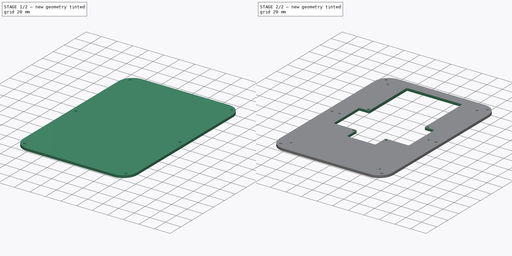
[diagram: build sequence overview — one tinted view per stage of 2, left to right]
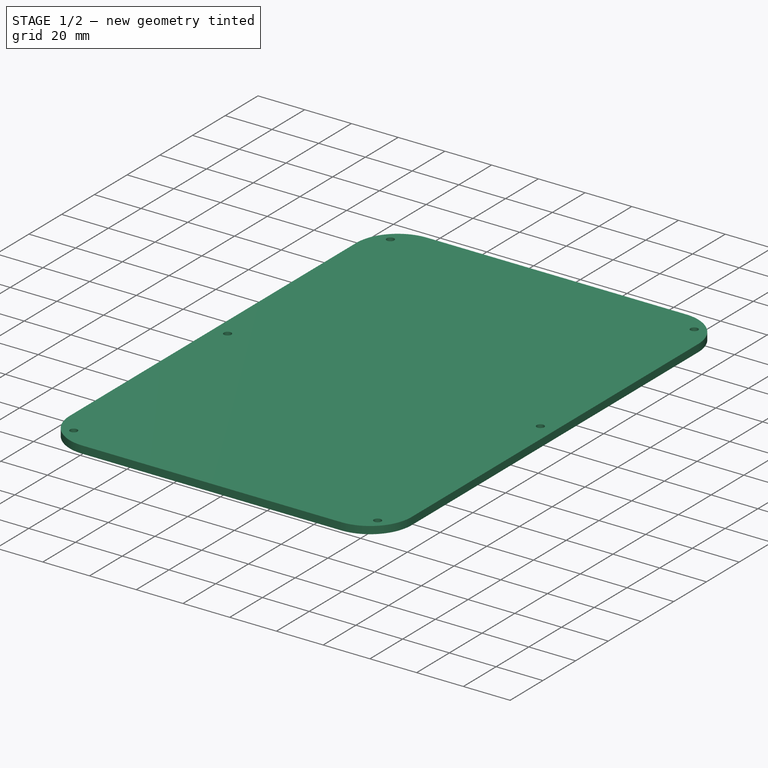
[diagram: stage 1 of 2 — iso view after this stage's code; geometry added in this stage tinted green]
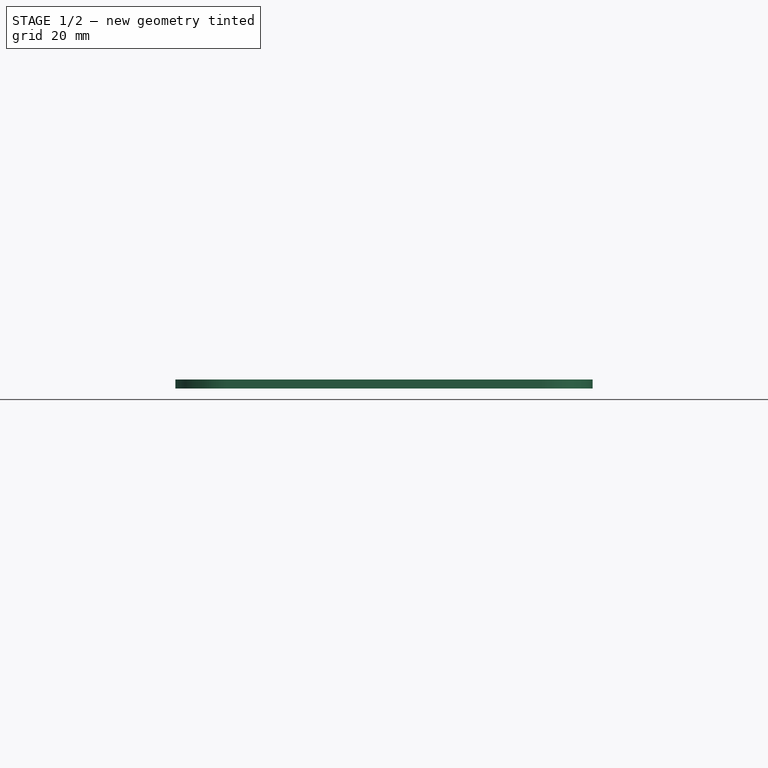
[diagram: stage 1 of 2 — front view after this stage's code; geometry added in this stage tinted green]
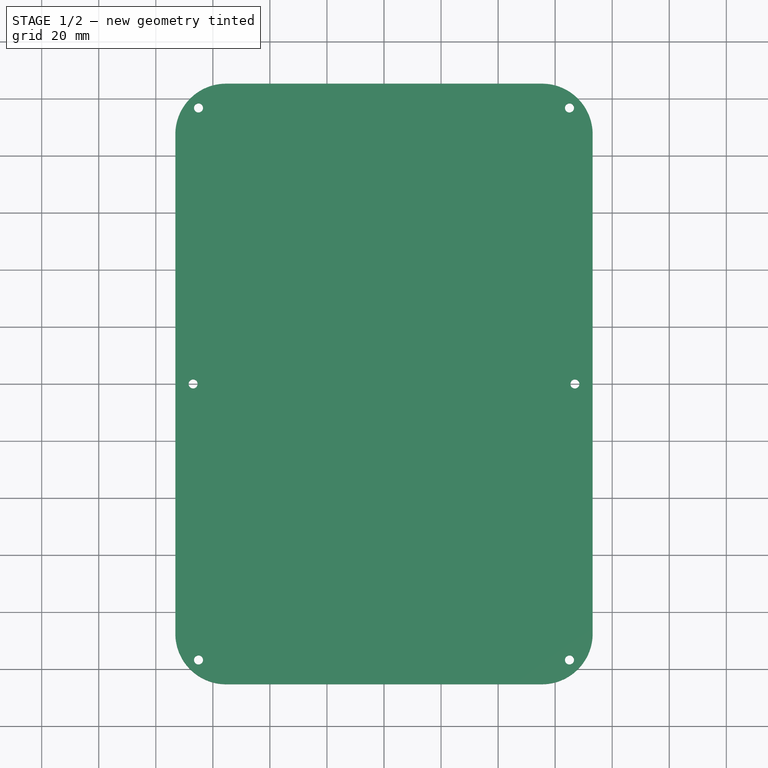
[diagram: stage 1 of 2 — top view after this stage's code; geometry added in this stage tinted green]
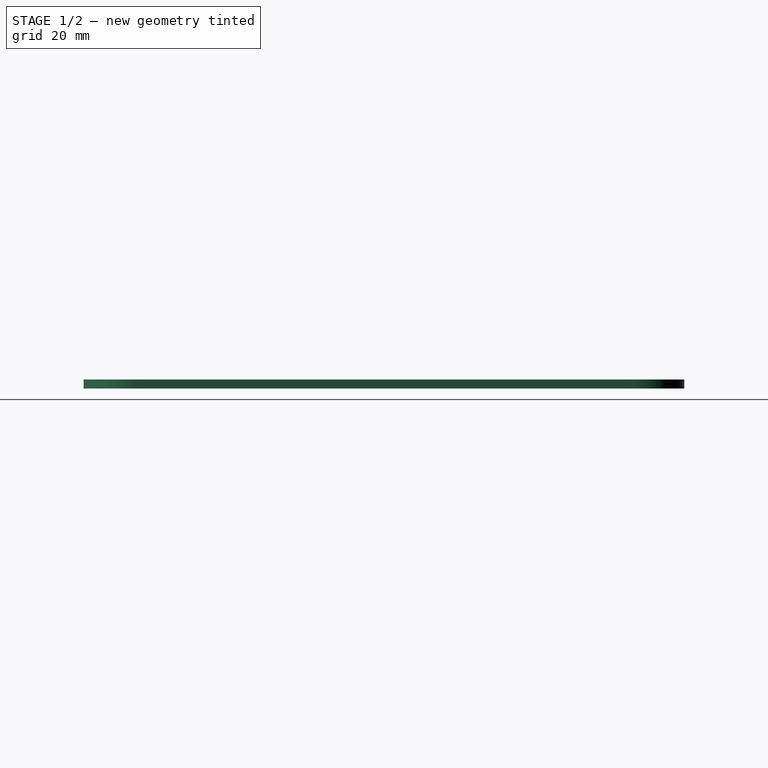
[diagram: stage 1 of 2 — right view after this stage's code; geometry added in this stage tinted green]
FCSTD DOCUMENT  (FreeCAD 0.20R29177 (Git))
Label: top_plate
License: All rights reserved
LicenseURL: http://en.wikipedia.org/wiki/All_rights_reserved
objects: Sketcher::SketchObject×4, PartDesign::Pocket×3, Spreadsheet::Sheet×1, PartDesign::Pad×1, PartDesign::Plane×1, PartDesign::Body×1, Part::Part2DObjectPython×1
note: 15 computed .brp shape members not serialized (recipe doc carries the construction recipe); baked Part::Feature solids carry a one-line shape summary decoded from their .brp

FEATURE [Sketcher::SketchObject] Sketch  label="BoundarySketch"
  FullyConstrained = true
  MapMode = 5
  Support = -> [XY_Plane]
  expr: Constraints[20] = Spreadsheet.Length
  expr: Constraints[21] = Spreadsheet.Width
  expr: Constraints[22] = Spreadsheet.CornerRadius
  sketch-geometry (10):
    g0: ArcOfCircle CenterX=-55.372 CenterY=87.503 CenterZ=0 NormalX=0 NormalY=0 NormalZ=1 AngleXU=0 Radius=17.78 StartAngle=1.5708 EndAngle=3.14159
    g1: LineSegment StartX=-55.372 StartY=105.283 StartZ=0 EndX=55.372 EndY=105.283 EndZ=0
    g2: ArcOfCircle CenterX=55.372 CenterY=87.503 CenterZ=0 NormalX=0 NormalY=0 NormalZ=1 AngleXU=0 Radius=17.78 StartAngle=0 EndAngle=1.5708
    g3: LineSegment StartX=73.152 StartY=87.503 StartZ=0 EndX=73.152 EndY=-87.503 EndZ=0
    g4: ArcOfCircle CenterX=55.372 CenterY=-87.503 CenterZ=0 NormalX=0 NormalY=0 NormalZ=1 AngleXU=0 Radius=17.78 StartAngle=4.71239 EndAngle=6.28319
    g5: LineSegment StartX=55.372 StartY=-105.283 StartZ=0 EndX=-55.372 EndY=-105.283 EndZ=0
    g6: ArcOfCircle CenterX=-55.372 CenterY=-87.503 CenterZ=0 NormalX=0 NormalY=0 NormalZ=1 AngleXU=0 Radius=17.78 StartAngle=3.14159 EndAngle=4.71239
    g7: LineSegment StartX=-73.152 StartY=-87.503 StartZ=0 EndX=-73.152 EndY=87.503 EndZ=0
    g8: GeomPoint X=-73.152 Y=105.283 Z=0
    g9: GeomPoint X=73.152 Y=-105.283 Z=0
  constraints (23):
    c: Tangent(g0,g1) = 1.5708
    c: Tangent(g1,g2) = 1.5708
    c: Tangent(g2,g3) = 1.5708
    c: Tangent(g3,g4) = 1.5708
    c: Tangent(g4,g5) = 1.5708
    c: Tangent(g5,g6) = 1.5708
    c: Tangent(g6,g7) = 1.5708
    c: Tangent(g7,g0) = 1.5708
    c: Horizontal(g1)
    c: Horizontal(g5)
    c: Vertical(g3)
    c: Vertical(g7)
    c: Equal(g0,g2)
    c: Equal(g2,g4)
    c: Equal(g4,g6)
    c: PointOnObject(g8,g1)
    c: PointOnObject(g8,g7)
    c: PointOnObject(g9,g3)
    c: PointOnObject(g9,g5)
    c: Symmetric(g0,g4,g-1)
    c: DistanceY(g4,g1) = 210.566
    c: DistanceX(g6,g3) = 146.304
    c: Radius(g0) = 17.78
FEATURE [Spreadsheet::Sheet] Spreadsheet
  cells = A2=Plate Dimensions; A3=Length; B3(Length)==8.289999999999999in; A4=Width; B4(Width)==5.76in; A5=CornerRadius; B5(CornerRadius)==0.7in; A6=Thickness; B6(Thickness)==0.125in; A8=Enclosure Mount; A9=EnclosureMountLength; B9(EnclosureMountLength)==7.62in; A10=EnclosureMountWidthOuter; B10(EnclosureMountWidthOuter)==5.12in; A11=EnclosureMountWidthInner; B11(EnclosureMountWidthInner)==5.27in; A12=EnclosureMountHoleDiameter; B12(EnclosureMountHoleDiameter)==0.125in; A14=PyGamer Mount ; A15=PyGamerLength; B15(PyGamerLength)==2.25in; A16=PyGamerWidth; B16(PyGamerWidth)==4in; A17=PyGamerMountDistTopToSide; B17(PyGamerMountDistTopToSide)==0.5in; A18=PyGamerMountDistBotToSide; B18(PyGamerMountDistBotToSide)==1.18in; A19=PyGamerMountDistTopToTop; B19(PyGamerMountDistTopToTop)==0.125in; A20=PyGamerMountDistBotToBot; B20(PyGamerMountDistBotToBot)==0.125in; A21=PyGammerMountHoleDiameter; B21(PyGammerMountHoleDiameter)==3mm; A23=PyGamer Cutout; A24=PyGamerCutoutHoleMargin; B24(PyGamerCutoutHoleMargin)==0.1in; A25=PyGamerCutoutSideMargin; B25(PyGamerCutoutSideMargin)==0.1in; A26=PyGamerCutoutBotMargin; B26(PyGamerCutoutBotMargin)==0.5in; A27=PyGamerCutoutTopMargin; B27(PyGamerCutoutTopMargin)==2.5in; A28=PyGamerCutoutFilletRadius; B28(PyGamerCutoutFilletRadius)==0.05in; A30=Bottom Plate Mount; A31=BotPlateMountLength; B31(BotPlateMountLength)==7in; A32=BotPlateMountWidth; B32(BotPlateMountWidth)==4.5in; A33=BotPlateMountHoleDiameter; B33(BotPlateMountHoleDiameter)==0.092in
FEATURE [PartDesign::Pad] Pad  label="BoundaryPad"
  Direction = (0,0,1)
  Length = 3.175
  Length2 = 10
  Profile = -> Sketch
  ReferenceAxis = -> Sketch [N_Axis]
  Type = 0
  expr: Length = Spreadsheet.Thickness
FEATURE [PartDesign::Plane] DatumPlane  label="TopSurfaceDatumPlane"
  AttachmentOffset = pos=(0,0,3.175) rot=(0,0,1;0rad)
  Length = 181.408
  MapMode = 5
  Placement = pos=(0,0,3.175) rot=(0,0,1;0rad)
  ResizeMode = 0
  Support = -> [XY_Plane]
  Width = 245.67
  expr: .AttachmentOffset.Base.z = Spreadsheet.Thickness
FEATURE [Sketcher::SketchObject] Sketch001  label="EnclosureMountSketch"
  FullyConstrained = true
  MapMode = 5
  Placement = pos=(0,0,3.175) rot=(0,0,1;0rad)
  Support = -> [DatumPlane]
  expr: Constraints[10] = Spreadsheet.EnclosureMountWidthOuter
  expr: Constraints[16] = Spreadsheet.EnclosureMountWidthInner
  expr: Constraints[28] = Spreadsheet.EnclosureMountHoleDiameter
  expr: Constraints[9] = Spreadsheet.EnclosureMountLength
  sketch-geometry (12):
    g0: LineSegment StartX=-65.024 StartY=96.774 StartZ=0 EndX=65.024 EndY=96.774 EndZ=0
    g1: LineSegment StartX=65.024 StartY=96.774 StartZ=0 EndX=65.024 EndY=-96.774 EndZ=0
    g2: LineSegment StartX=65.024 StartY=-96.774 StartZ=0 EndX=-65.024 EndY=-96.774 EndZ=0
    g3: LineSegment StartX=-65.024 StartY=-96.774 StartZ=0 EndX=-65.024 EndY=96.774 EndZ=0
    g4: LineSegment StartX=-66.929 StartY=0 StartZ=0 EndX=0 EndY=0 EndZ=0
    g5: LineSegment StartX=0 StartY=0 StartZ=0 EndX=66.929 EndY=0 EndZ=0
    g6: Circle CenterX=-65.024 CenterY=96.774 CenterZ=0 NormalX=0 NormalY=0 NormalZ=1 AngleXU=0 Radius=1.5875
    g7: Circle CenterX=65.024 CenterY=96.774 CenterZ=0 NormalX=0 NormalY=0 NormalZ=1 AngleXU=0 Radius=1.5875
    g8: Circle CenterX=65.024 CenterY=-96.774 CenterZ=0 NormalX=0 NormalY=0 NormalZ=1 AngleXU=0 Radius=1.5875
    g9: Circle CenterX=-65.024 CenterY=-96.774 CenterZ=0 NormalX=0 NormalY=0 NormalZ=1 AngleXU=0 Radius=1.5875
    g10: Circle CenterX=-66.929 CenterY=0 CenterZ=0 NormalX=0 NormalY=0 NormalZ=1 AngleXU=0 Radius=1.5875
    g11: Circle CenterX=66.929 CenterY=0 CenterZ=0 NormalX=0 NormalY=0 NormalZ=1 AngleXU=0 Radius=1.5875
  constraints (29):
    c: Coincident(g0,g1)
    c: Coincident(g1,g2)
    c: Coincident(g2,g3)
    c: Coincident(g3,g0)
    c: Horizontal(g0)
    c: Horizontal(g2)
    c: Vertical(g1)
    c: Vertical(g3)
    c: Symmetric(g0,g1,g-1)
    c: Distance(g1) = 193.548
    c: Distance(g2) = 130.048
    c: Horizontal(g4)
    c: Horizontal(g5)
    c: Coincident(g4,g5)
    c: Coincident(g4,g-1)
    c: Equal(g4,g5)
    c: Distance(g4,g5) = 133.858
    c: Equal(g6,g7)
    c: Equal(g7,g8)
    c: Equal(g8,g9)
    c: Coincident(g6,g0)
    c: Coincident(g0,g7)
    c: Coincident(g9,g2)
    c: Coincident(g1,g8)
    c: Equal(g10,g11)
    c: Equal(g11,g7)
    c: Coincident(g10,g4)
    c: Coincident(g11,g5)
    c: Diameter(g6) = 3.175
FEATURE [PartDesign::Pocket] Pocket  label="EnclosureMountPocket"
  BaseFeature = -> Pad
  Direction = (0,0,-1)
  Length = 5
  Length2 = 5
  Profile = -> Sketch001
  ReferenceAxis = -> Sketch001 [N_Axis]
  Type = 1
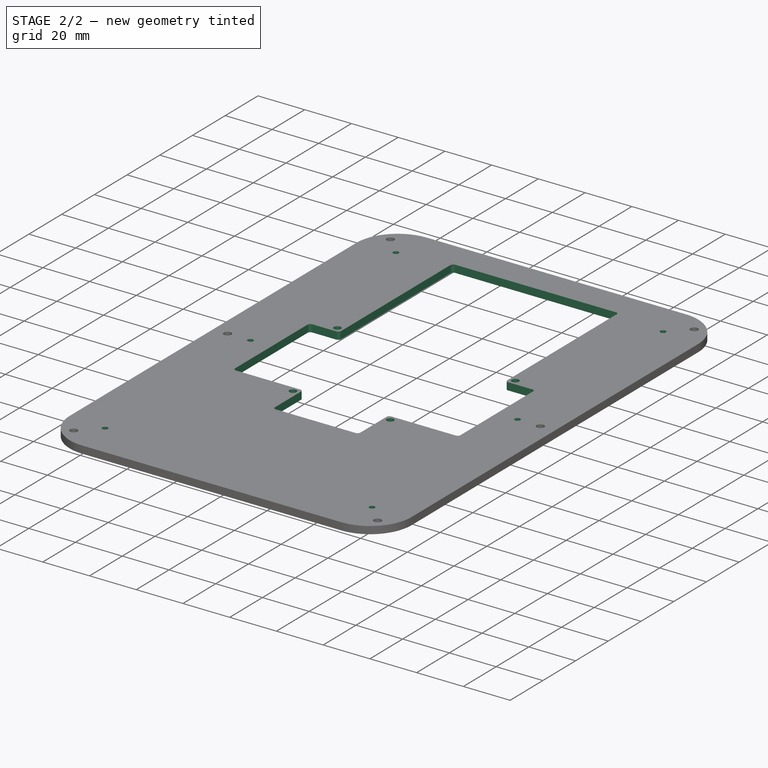
[diagram: stage 2 of 2 — iso view after this stage's code; geometry added in this stage tinted green]
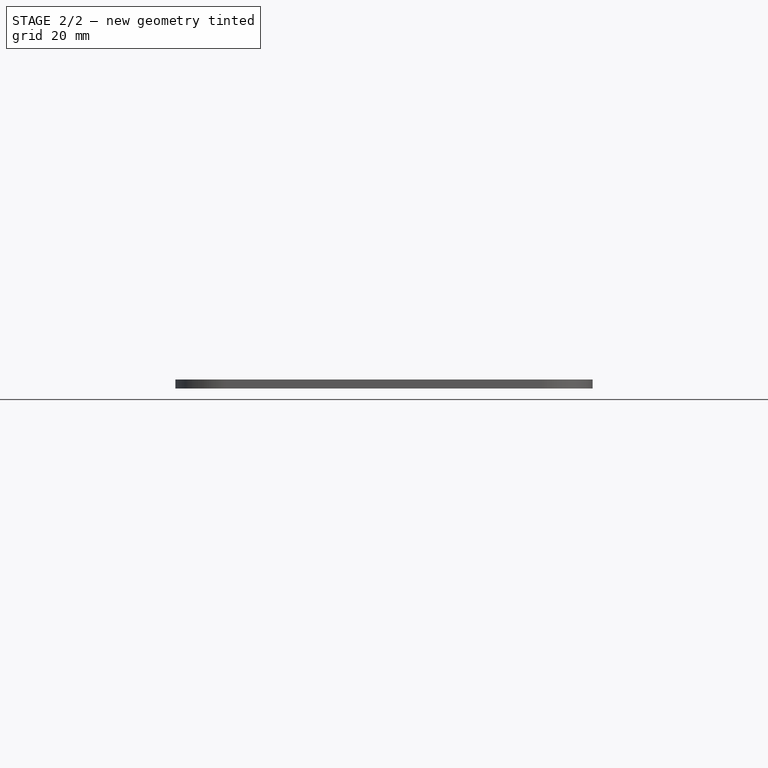
[diagram: stage 2 of 2 — front view after this stage's code; geometry added in this stage tinted green]
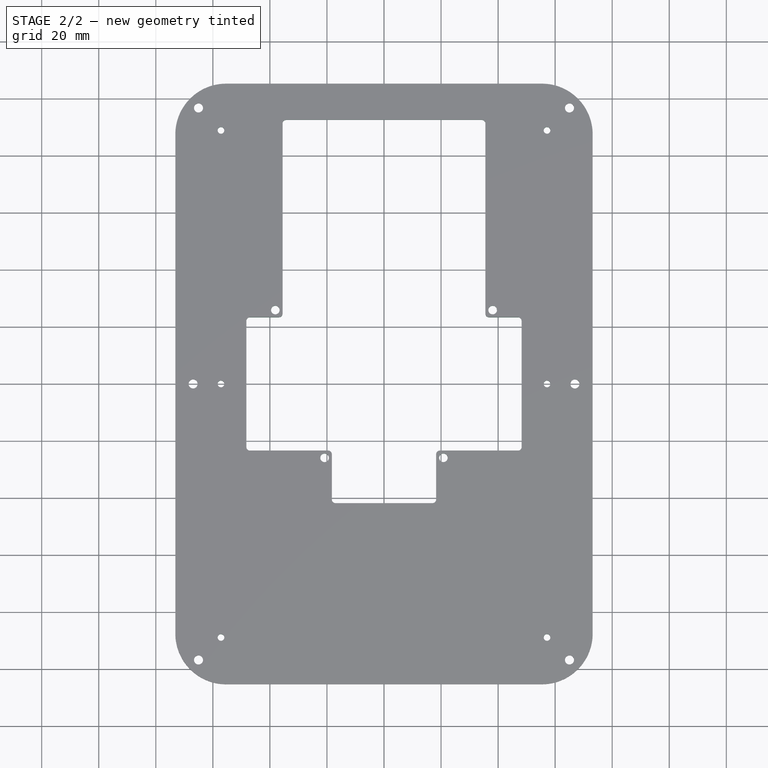
[diagram: stage 2 of 2 — top view after this stage's code; geometry added in this stage tinted green]
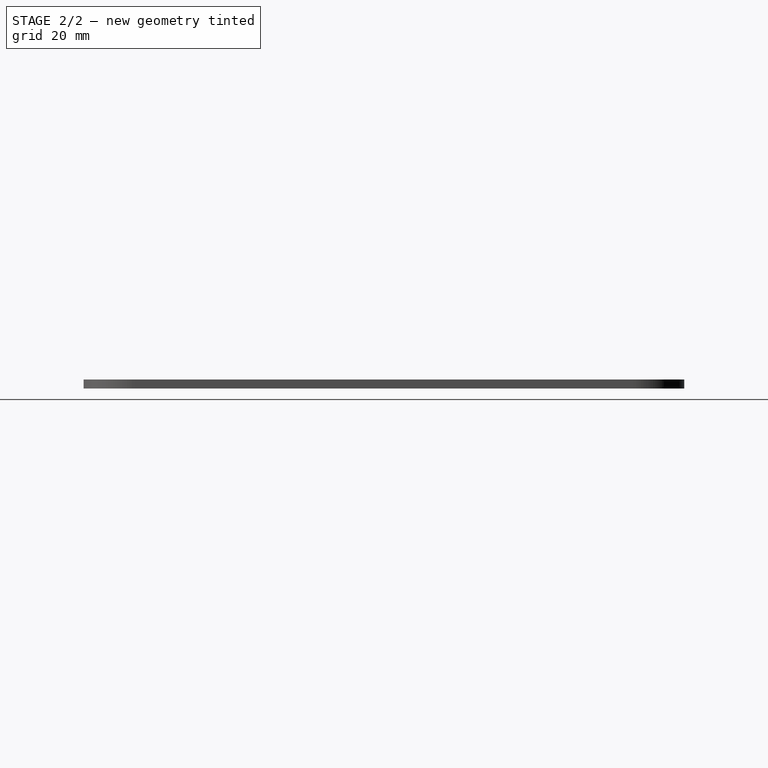
[diagram: stage 2 of 2 — right view after this stage's code; geometry added in this stage tinted green]
FEATURE [Sketcher::SketchObject] Sketch002  label="PyGamerMountSketch"
  FullyConstrained = true
  MapMode = 5
  Placement = pos=(0,0,3.175) rot=(0,0,1;0rad)
  Support = -> [DatumPlane]
  expr: Constraints[10] = Spreadsheet.PyGamerWidth
  expr: Constraints[14] = Spreadsheet.PyGamerMountDistBotToSide
  expr: Constraints[20] = Spreadsheet.PyGamerMountDistTopToSide
  expr: Constraints[33] = Spreadsheet.PyGamerMountDistTopToTop
  expr: Constraints[34] = Spreadsheet.PyGamerMountDistBotToBot
  expr: Constraints[42] = Spreadsheet.PyGammerMountHoleDiameter
  expr: Constraints[67] = Spreadsheet.PyGamerCutoutHoleMargin
  expr: Constraints[68] = Spreadsheet.PyGamerCutoutHoleMargin
  expr: Constraints[69] = Spreadsheet.PyGamerCutoutBotMargin
  expr: Constraints[70] = Spreadsheet.PyGamerCutoutSideMargin
  expr: Constraints[71] = Spreadsheet.PyGamerCutoutHoleMargin
  expr: Constraints[72] = Spreadsheet.PyGamerCutoutHoleMargin
  expr: Constraints[73] = Spreadsheet.PyGamerCutoutHoleMargin
  expr: Constraints[74] = Spreadsheet.PyGamerCutoutHoleMargin
  expr: Constraints[75] = Spreadsheet.PyGamerCutoutSideMargin
  expr: Constraints[76] = Spreadsheet.PyGamerCutoutHoleMargin
  expr: Constraints[77] = Spreadsheet.PyGamerCutoutHoleMargin
  expr: Constraints[78] = Spreadsheet.PyGamerCutoutTopMargin
  expr: Constraints[83] = Spreadsheet.PyGamerCutoutFilletRadius
  sketch-geometry (56):
    g0: LineSegment StartX=-50.8 StartY=29.08 StartZ=0 EndX=50.8 EndY=29.08 EndZ=0
    g1: LineSegment StartX=50.8 StartY=29.08 StartZ=0 EndX=50.8 EndY=-29.08 EndZ=0
    g2: LineSegment StartX=50.8 StartY=-29.08 StartZ=0 EndX=-50.8 EndY=-29.08 EndZ=0
    g3: LineSegment StartX=-50.8 StartY=-29.08 StartZ=0 EndX=-50.8 EndY=29.08 EndZ=0
    g4: LineSegment StartX=-50.8 StartY=-29.08 StartZ=0 EndX=-20.828 EndY=-29.08 EndZ=0
    g5: LineSegment StartX=20.828 StartY=-29.08 StartZ=0 EndX=50.8 EndY=-29.08 EndZ=0
    g6: LineSegment StartX=-50.8 StartY=29.08 StartZ=0 EndX=-38.1 EndY=29.08 EndZ=0
    g7: LineSegment StartX=38.1 StartY=29.08 StartZ=0 EndX=50.8 EndY=29.08 EndZ=0
    g8: LineSegment StartX=-38.1 StartY=29.08 StartZ=0 EndX=-38.1 EndY=25.905 EndZ=0
    g9: LineSegment StartX=38.1 StartY=29.08 StartZ=0 EndX=38.1 EndY=25.905 EndZ=0
    g10: LineSegment StartX=-20.828 StartY=-25.905 StartZ=0 EndX=-20.828 EndY=-29.08 EndZ=0
    g11: LineSegment StartX=20.828 StartY=-25.905 StartZ=0 EndX=20.828 EndY=-29.08 EndZ=0
    g12: Circle CenterX=-38.1 CenterY=25.905 CenterZ=0 NormalX=0 NormalY=0 NormalZ=1 AngleXU=0 Radius=1.5
    g13: Circle CenterX=38.1 CenterY=25.905 CenterZ=0 NormalX=0 NormalY=0 NormalZ=1 AngleXU=0 Radius=1.5
    g14: Circle CenterX=-20.828 CenterY=-25.905 CenterZ=0 NormalX=0 NormalY=0 NormalZ=1 AngleXU=0 Radius=1.5
    g15: Circle CenterX=20.828 CenterY=-25.905 CenterZ=0 NormalX=0 NormalY=0 NormalZ=1 AngleXU=0 Radius=1.5
    g16: LineSegment StartX=-18.288 StartY=-29.08 StartZ=0 EndX=-18.288 EndY=-40.51 EndZ=0
    g17: LineSegment StartX=-17.018 StartY=-41.78 StartZ=0 EndX=17.018 EndY=-41.78 EndZ=0
    g18: LineSegment StartX=18.288 StartY=-40.51 StartZ=0 EndX=18.288 EndY=-29.08 EndZ=0
    g19: LineSegment StartX=18.288 StartY=-29.08 StartZ=0 EndX=18.288 EndY=-24.635 EndZ=0
    g20: LineSegment StartX=19.558 StartY=-23.365 StartZ=0 EndX=46.99 EndY=-23.365 EndZ=0
    g21: LineSegment StartX=48.26 StartY=-22.095 StartZ=0 EndX=48.26 EndY=22.095 EndZ=0
    g22: LineSegment StartX=46.99 StartY=23.365 StartZ=0 EndX=36.83 EndY=23.365 EndZ=0
    g23: LineSegment StartX=35.56 StartY=24.635 StartZ=0 EndX=35.56 EndY=29.08 EndZ=0
    g24: LineSegment StartX=35.56 StartY=29.08 StartZ=0 EndX=35.56 EndY=91.31 EndZ=0
    g25: LineSegment StartX=34.29 StartY=92.58 StartZ=0 EndX=-34.29 EndY=92.58 EndZ=0
    g26: LineSegment StartX=-35.56 StartY=91.31 StartZ=0 EndX=-35.56 EndY=29.08 EndZ=0
    g27: LineSegment StartX=-35.56 StartY=29.08 StartZ=0 EndX=-35.56 EndY=24.635 EndZ=0
    g28: LineSegment StartX=-36.83 StartY=23.365 StartZ=0 EndX=-46.99 EndY=23.365 EndZ=0
    g29: LineSegment StartX=-48.26 StartY=22.095 StartZ=0 EndX=-48.26 EndY=-22.095 EndZ=0
    g30: LineSegment StartX=-46.99 StartY=-23.365 StartZ=0 EndX=-19.558 EndY=-23.365 EndZ=0
    g31: LineSegment StartX=-18.288 StartY=-24.635 StartZ=0 EndX=-18.288 EndY=-29.08 EndZ=0
    g32: ArcOfCircle CenterX=-46.99 CenterY=22.095 CenterZ=0 NormalX=0 NormalY=0 NormalZ=1 AngleXU=0 Radius=1.27 StartAngle=1.5708 EndAngle=3.14159
    g33: GeomPoint X=-48.26 Y=23.365 Z=0
    g34: ArcOfCircle CenterX=-36.83 CenterY=24.635 CenterZ=0 NormalX=0 NormalY=0 NormalZ=1 AngleXU=0 Radius=1.27 StartAngle=4.71239 EndAngle=6.28319
    g35: GeomPoint X=-35.56 Y=23.365 Z=0
    g36: ArcOfCircle CenterX=-34.29 CenterY=91.31 CenterZ=0 NormalX=0 NormalY=0 NormalZ=1 AngleXU=0 Radius=1.27 StartAngle=1.5708 EndAngle=3.14159
    g37: GeomPoint X=-35.56 Y=92.58 Z=0
    g38: ArcOfCircle CenterX=34.29 CenterY=91.31 CenterZ=0 NormalX=0 NormalY=0 NormalZ=1 AngleXU=0 Radius=1.27 StartAngle=-4.4e-15 EndAngle=1.5708
    g39: GeomPoint X=35.56 Y=92.58 Z=0
    g40: ArcOfCircle CenterX=36.83 CenterY=24.635 CenterZ=0 NormalX=0 NormalY=0 NormalZ=1 AngleXU=0 Radius=1.27 StartAngle=3.14159 EndAngle=4.71239
    g41: GeomPoint X=35.56 Y=23.365 Z=0
    g42: ArcOfCircle CenterX=46.99 CenterY=22.095 CenterZ=0 NormalX=0 NormalY=0 NormalZ=1 AngleXU=0 Radius=1.27 StartAngle=9e-16 EndAngle=1.5708
    g43: GeomPoint X=48.26 Y=23.365 Z=0
    g44: ArcOfCircle CenterX=46.99 CenterY=-22.095 CenterZ=0 NormalX=0 NormalY=0 NormalZ=1 AngleXU=0 Radius=1.27 StartAngle=4.71239 EndAngle=6.28319
    g45: GeomPoint X=48.26 Y=-23.365 Z=0
    g46: ArcOfCircle CenterX=19.558 CenterY=-24.635 CenterZ=0 NormalX=0 NormalY=0 NormalZ=1 AngleXU=0 Radius=1.27 StartAngle=1.5708 EndAngle=3.14159
    g47: GeomPoint X=18.288 Y=-23.365 Z=0
    g48: ArcOfCircle CenterX=17.018 CenterY=-40.51 CenterZ=0 NormalX=0 NormalY=0 NormalZ=1 AngleXU=0 Radius=1.27 StartAngle=4.71239 EndAngle=6.28319
    g49: GeomPoint X=18.288 Y=-41.78 Z=0
    g50: ArcOfCircle CenterX=-17.018 CenterY=-40.51 CenterZ=0 NormalX=0 NormalY=0 NormalZ=1 AngleXU=0 Radius=1.27 StartAngle=3.14159 EndAngle=4.71239
    g51: GeomPoint X=-18.288 Y=-41.78 Z=0
    g52: ArcOfCircle CenterX=-19.558 CenterY=-24.635 CenterZ=0 NormalX=0 NormalY=0 NormalZ=1 AngleXU=0 Radius=1.27 StartAngle=1e-15 EndAngle=1.5708
    g53: GeomPoint X=-18.288 Y=-23.365 Z=0
    g54: ArcOfCircle CenterX=-46.99 CenterY=-22.095 CenterZ=0 NormalX=0 NormalY=0 NormalZ=1 AngleXU=0 Radius=1.27 StartAngle=3.14159 EndAngle=4.71239
    g55: GeomPoint X=-48.26 Y=-23.365 Z=0
  constraints (139):
    c: Coincident(g0,g1)
    c: Coincident(g1,g2)
    c: Coincident(g2,g3)
    c: Coincident(g3,g0)
    c: Horizontal(g0)
    c: Horizontal(g2)
    c: Vertical(g1)
    c: Vertical(g3)
    c: Symmetric(g0,g1,g-1)
    c: Distance(g1) = 58.16
    c: Distance(g2) = 101.6
    c: Horizontal(g4)
    c: Horizontal(g5)
    c: Equal(g4,g5)
    c: Distance(g4) = 29.972
    c: Coincident(g4,g2)
    c: Coincident(g5,g1)
    c: Horizontal(g6)
    c: Horizontal(g7)
    c: Equal(g6,g7)
    c: Distance(g6) = 12.7
    c: Coincident(g6,g0)
    c: Coincident(g7,g0)
    c: Vertical(g8)
    c: Vertical(g9)
    c: Vertical(g10)
    c: Vertical(g11)
    c: Equal(g8,g9)
    c: Equal(g10,g11)
    c: Coincident(g8,g6)
    c: Coincident(g9,g7)
    c: Coincident(g10,g4)
    c: Coincident(g11,g5)
    c: Distance(g9) = 3.175
    c: Distance(g11) = 3.175
    c: Equal(g12,g13)
    c: Equal(g13,g15)
    c: Equal(g15,g14)
    c: Coincident(g12,g8)
    c: Coincident(g13,g9)
    c: Coincident(g14,g10)
    c: Coincident(g15,g11)
    c: Diameter(g12) = 3
    c: Vertical(g16)
    c: Horizontal(g17)
    c: Vertical(g18)
    c: Coincident(g18,g19)
    c: Vertical(g19)
    c: Horizontal(g20)
    c: Vertical(g21)
    c: Horizontal(g22)
    c: Vertical(g23)
    c: Coincident(g23,g24)
    c: Vertical(g24)
    c: Horizontal(g25)
    c: Vertical(g26)
    c: Coincident(g26,g27)
    c: Vertical(g27)
    c: Horizontal(g28)
    c: Vertical(g29)
    c: Horizontal(g30)
    c: Vertical(g31)
    c: Coincident(g31,g16)
    c: PointOnObject(g16,g2)
    c: PointOnObject(g18,g2)
    c: PointOnObject(g23,g0)
    c: PointOnObject(g26,g0)
    c: DistanceX(g14,g16) = 2.54
    c: DistanceY(g14,g53) = 2.54
    c: DistanceY(g51,g16) = 12.7
    c: DistanceX(g2,g55) = 2.54
    c: DistanceX(g18,g15) = 2.54
    c: DistanceY(g15,g47) = 2.54
    c: DistanceY(g35,g12) = 2.54
    c: DistanceX(g12,g26) = 2.54
    c: DistanceX(g45,g1) = 2.54
    c: DistanceY(g41,g13) = 2.54
    c: DistanceX(g23,g13) = 2.54
    c: DistanceY(g24,g39) = 63.5
    c: PointOnObject(g33,g29)
    c: PointOnObject(g33,g28)
    c: Tangent(g29,g32) = -1.5708
    c: Tangent(g28,g32) = -1.5708
    c: Radius(g32) = 1.27
    c: PointOnObject(g35,g28)
    c: PointOnObject(g35,g27)
    c: Tangent(g28,g34) = 1.5708
    c: Tangent(g27,g34) = 1.5708
    c: Equal(g32,g34)
    c: PointOnObject(g37,g26)
    c: PointOnObject(g37,g25)
    c: Tangent(g26,g36) = -1.5708
    c: Tangent(g25,g36) = -1.5708
    c: Equal(g36,g34)
    c: PointOnObject(g39,g25)
    c: PointOnObject(g39,g24)
    c: Tangent(g25,g38) = -1.5708
    c: Tangent(g24,g38) = -1.5708
    c: Equal(g38,g36)
    c: PointOnObject(g41,g23)
    c: PointOnObject(g41,g22)
    c: Tangent(g23,g40) = 1.5708
    c: Tangent(g22,g40) = 1.5708
    c: Equal(g40,g38)
    c: PointOnObject(g43,g22)
    c: PointOnObject(g43,g21)
    c: Tangent(g22,g42) = -1.5708
    c: Tangent(g21,g42) = -1.5708
    c: Equal(g40,g42)
    c: PointOnObject(g45,g20)
    c: PointOnObject(g45,g21)
    c: Tangent(g20,g44) = -1.5708
    c: Tangent(g21,g44) = -1.5708
    c: Equal(g44,g42)
    c: PointOnObject(g47,g20)
    c: PointOnObject(g47,g19)
    c: Tangent(g20,g46) = 1.5708
    c: Tangent(g19,g46) = 1.5708
    c: Equal(g46,g44)
    c: PointOnObject(g49,g18)
    c: PointOnObject(g49,g17)
    c: Tangent(g18,g48) = -1.5708
    c: Tangent(g17,g48) = -1.5708
    c: Equal(g48,g46)
    c: PointOnObject(g51,g17)
    c: PointOnObject(g51,g16)
    c: Tangent(g17,g50) = -1.5708
    c: Tangent(g16,g50) = -1.5708
    c: Equal(g50,g48)
    c: PointOnObject(g53,g30)
    c: PointOnObject(g53,g31)
    c: Tangent(g30,g52) = 1.5708
    c: Tangent(g31,g52) = 1.5708
    c: Equal(g52,g50)
    c: PointOnObject(g55,g30)
    c: PointOnObject(g55,g29)
    c: Tangent(g30,g54) = -1.5708
    c: Tangent(g29,g54) = -1.5708
    c: Equal(g54,g52)
FEATURE [PartDesign::Pocket] Pocket001  label="PyGamerMountPocket"
  BaseFeature = -> Pocket
  Direction = (0,0,-1)
  Length = 5
  Length2 = 5
  Profile = -> Sketch002
  ReferenceAxis = -> Sketch002 [N_Axis]
  Type = 1
FEATURE [Sketcher::SketchObject] Sketch003  label="BotPlateMountSketch"
  FullyConstrained = true
  MapMode = 5
  Placement = pos=(0,0,3.175) rot=(0,0,1;0rad)
  Support = -> [DatumPlane]
  expr: Constraints[10] = Spreadsheet.BotPlateMountWidth
  expr: Constraints[24] = Spreadsheet.BotPlateMountHoleDiameter
  expr: Constraints[9] = Spreadsheet.BotPlateMountLength
  sketch-geometry (12):
    g0: LineSegment StartX=-57.15 StartY=88.9 StartZ=0 EndX=57.15 EndY=88.9 EndZ=0
    g1: LineSegment StartX=57.15 StartY=88.9 StartZ=0 EndX=57.15 EndY=-88.9 EndZ=0
    g2: LineSegment StartX=57.15 StartY=-88.9 StartZ=0 EndX=-57.15 EndY=-88.9 EndZ=0
    g3: LineSegment StartX=-57.15 StartY=-88.9 StartZ=0 EndX=-57.15 EndY=88.9 EndZ=0
    g4: GeomPoint X=-57.15 Y=2.3e-15 Z=0
    g5: GeomPoint X=57.15 Y=2.3e-15 Z=0
    g6: Circle CenterX=-57.15 CenterY=88.9 CenterZ=0 NormalX=0 NormalY=0 NormalZ=1 AngleXU=0 Radius=1.1684
    g7: Circle CenterX=57.15 CenterY=88.9 CenterZ=0 NormalX=0 NormalY=0 NormalZ=1 AngleXU=0 Radius=1.1684
    g8: Circle CenterX=57.15 CenterY=2.3e-15 CenterZ=0 NormalX=0 NormalY=0 NormalZ=1 AngleXU=0 Radius=1.1684
    g9: Circle CenterX=57.15 CenterY=-88.9 CenterZ=0 NormalX=0 NormalY=0 NormalZ=1 AngleXU=0 Radius=1.1684
    g10: Circle CenterX=-57.15 CenterY=-88.9 CenterZ=0 NormalX=0 NormalY=0 NormalZ=1 AngleXU=0 Radius=1.1684
    g11: Circle CenterX=-57.15 CenterY=2.3e-15 CenterZ=0 NormalX=0 NormalY=0 NormalZ=1 AngleXU=0 Radius=1.1684
  constraints (25):
    c: Coincident(g0,g1)
    c: Coincident(g1,g2)
    c: Coincident(g2,g3)
    c: Coincident(g3,g0)
    c: Horizontal(g0)
    c: Horizontal(g2)
    c: Vertical(g1)
    c: Vertical(g3)
    c: Symmetric(g0,g1,g-1)
    c: Distance(g1) = 177.8
    c: Distance(g2) = 114.3
    c: Symmetric(g0,g2,g4)
    c: Symmetric(g0,g1,g5)
    c: Equal(g11,g6)
    c: Equal(g6,g7)
    c: Equal(g7,g8)
    c: Equal(g8,g9)
    c: Equal(g9,g10)
    c: Coincident(g6,g0)
    c: Coincident(g7,g0)
    c: Coincident(g5,g8)
    c: Coincident(g1,g9)
    c: Coincident(g10,g2)
    c: Coincident(g11,g4)
    c: Diameter(g6) = 2.3368
FEATURE [PartDesign::Pocket] Pocket002  label="BotPlateMountPocket"
  BaseFeature = -> Pocket001
  Direction = (0,0,-1)
  Length = 5
  Length2 = 5
  Profile = -> Sketch003
  ReferenceAxis = -> Sketch003 [N_Axis]
  Type = 1
FEATURE [PartDesign::Body] Body
  Group = -> [Sketch,Pad,DatumPlane,Sketch001,Pocket,Sketch002,Pocket001,Sketch003,Pocket002]
  Origin = -> Origin
  Tip = -> Pocket002
FEATURE [Part::Part2DObjectPython] Shape2DView  # Draft 2D object (typed FeaturePython)
  AutoUpdate = true
  Base = -> Pocket002
  Clip = false
  FaceNumbers = [4]
  FuseArch = false
  HiddenLines = false
  InPlace = true
  OnlySolids = false
  Projection = (0,0,1)
  ProjectionMode = 0
  SegmentLength = 0.05
  Tessellation = false
  VisibleOnly = false
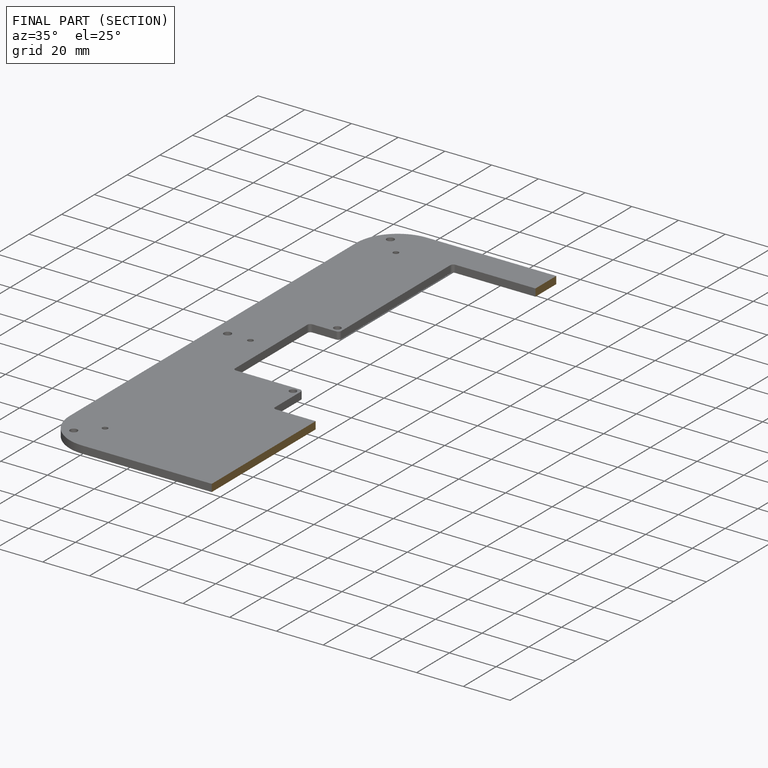
[diagram: finished part — half-section view (interior)]
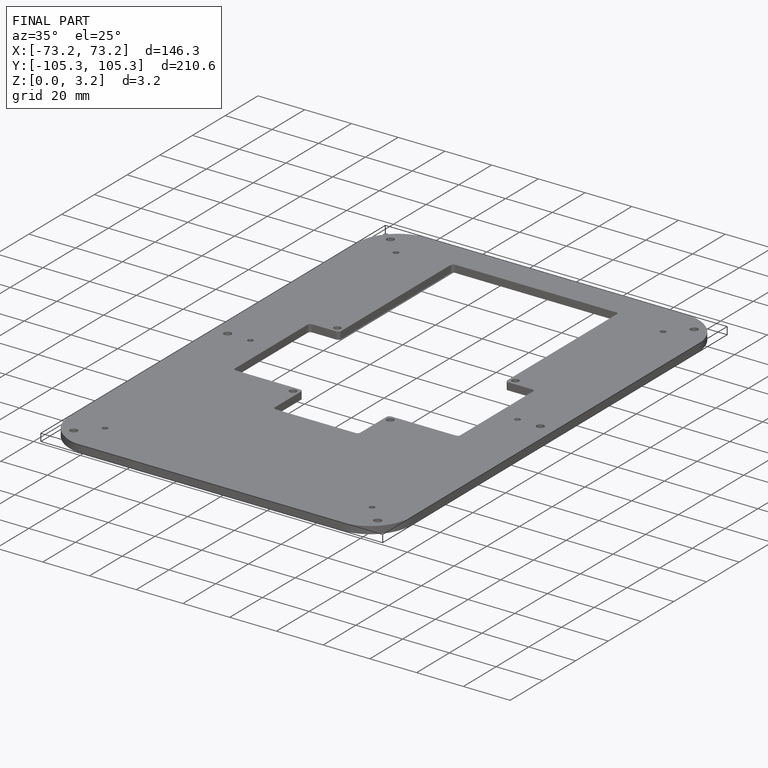
[diagram: finished part — iso view with bounding-box wireframe]
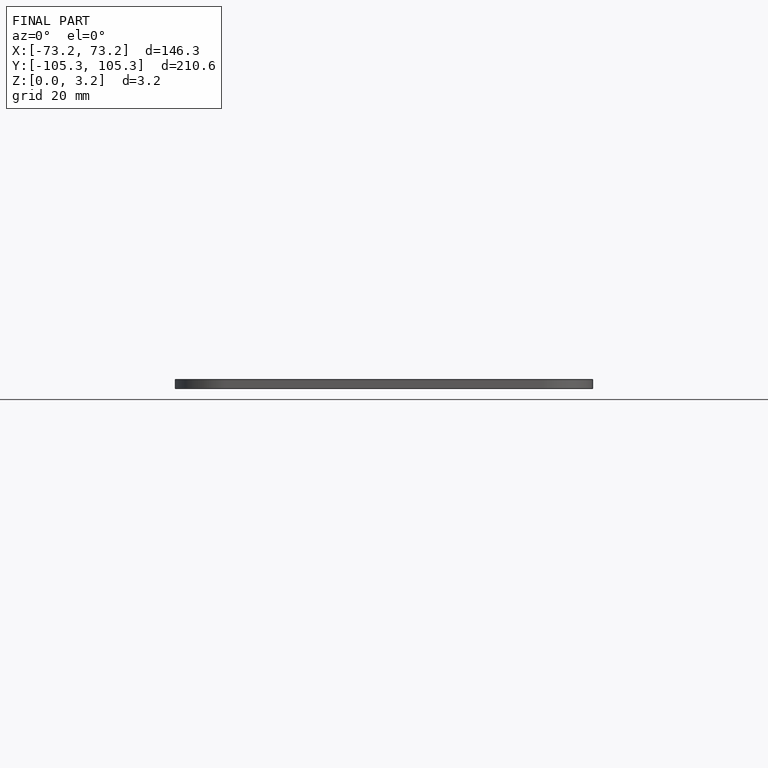
[diagram: finished part — front view with bounding-box wireframe]
